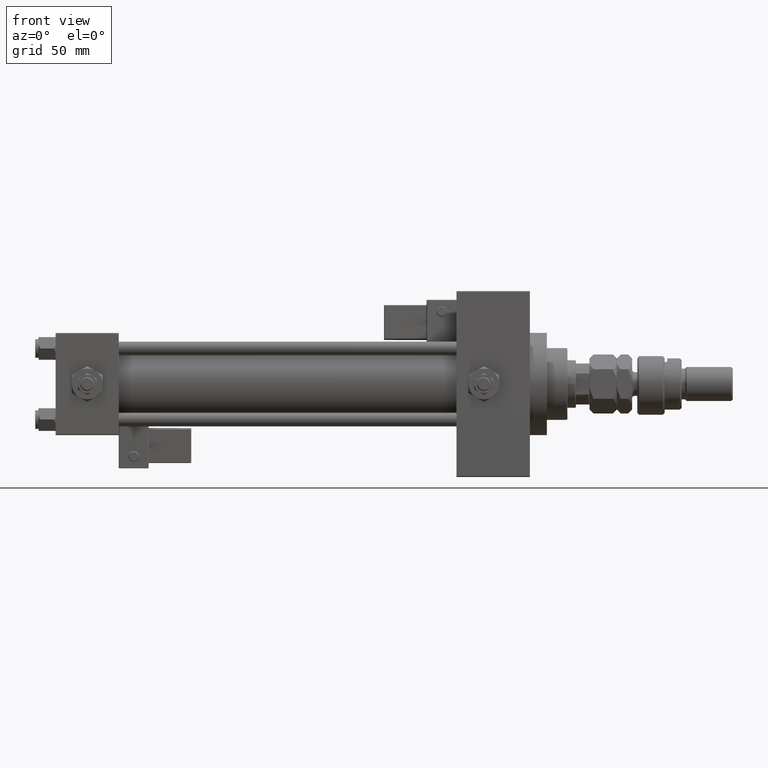
[diagram: clean part render]
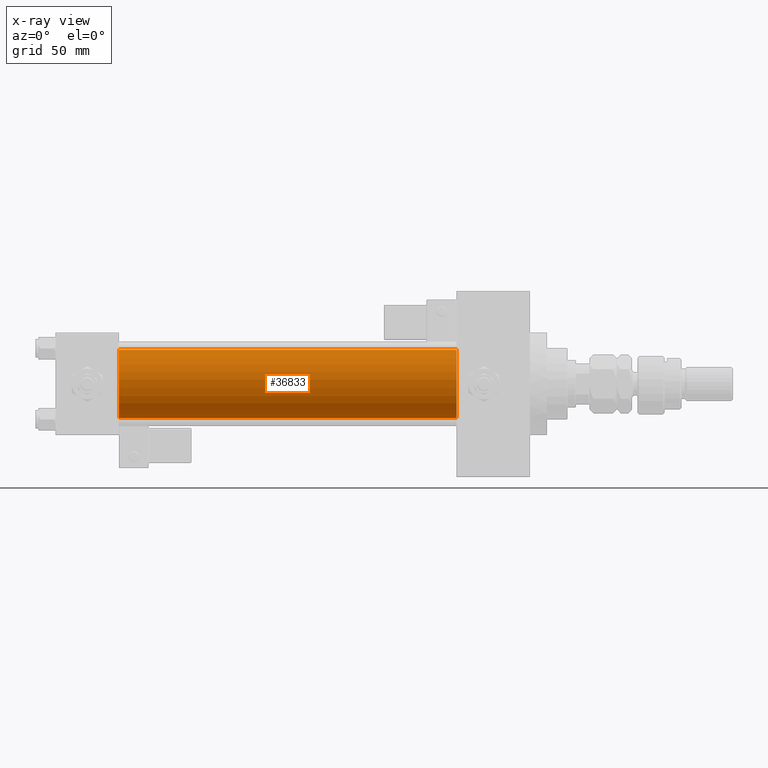
[diagram: x-ray — body ghosted, one internal face saturated and labeled with its STEP entity id]
A machine part, front view, then the same camera in x-ray: the body is ghosted and one INTERNAL B-rep face — a face not visible from any outside direction — is saturated and labeled: STEP entity #36833.
In plain terms, the highlighted cylindrical surface (edge-blend (fillet) strip) has radius 20 mm, axis along (-1, -0, -0).
Its self-contained STEP definition (entity closure, byte-faithful):
#2352 = DIRECTION ( 'NONE',  ( 0.000000000000000000, 0.000000000000000000, 1.000000000000000000 ) ) ;
#3156 = CYLINDRICAL_SURFACE ( 'NONE', #15878, 20.00000000000000000 ) ;
#5222 = EDGE_CURVE ( 'NONE', #45119, #42974, #51783, .T. ) ;
#6105 = DIRECTION ( 'NONE',  ( 0.000000000000000000, 0.000000000000000000, -1.000000000000000000 ) ) ;
#6398 = CIRCLE ( 'NONE', #36236, 20.00000000000000000 ) ;
#7893 = DIRECTION ( 'NONE',  ( -1.000000000000000000, -0.000000000000000000, -0.000000000000000000 ) ) ;
#9207 = DIRECTION ( 'NONE',  ( 1.000000000000000000, 0.000000000000000000, 0.000000000000000000 ) ) ;
#14133 = DIRECTION ( 'NONE',  ( -1.000000000000000000, -0.000000000000000000, -0.000000000000000000 ) ) ;
#14365 = VERTEX_POINT ( 'NONE', #32013 ) ;
#15878 = AXIS2_PLACEMENT_3D ( 'NONE', #35860, #53431, #2352 ) ;
#16031 = ORIENTED_EDGE ( 'NONE', *, *, #39070, .T. ) ;
#18288 = ORIENTED_EDGE ( 'NONE', *, *, #37634, .T. ) ;
#19972 = LINE ( 'NONE', #36737, #42248 ) ;
#24925 = CARTESIAN_POINT ( 'NONE',  ( 37.00000000000000000, -2.602085213965210642E-15, 20.00000000000000000 ) ) ;
#26551 = AXIS2_PLACEMENT_3D ( 'NONE', #39868, #53319, #48663 ) ;
#27888 = FACE_OUTER_BOUND ( 'NONE', #45634, .T. ) ;
#30830 = ORIENTED_EDGE ( 'NONE', *, *, #40683, .F. ) ;
#30890 = CIRCLE ( 'NONE', #26551, 20.00000000000000000 ) ;
#32013 = CARTESIAN_POINT ( 'NONE',  ( 37.00000000000000000, -1.527916156705042519E-16, -20.00000000000000000 ) ) ;
#35487 = CARTESIAN_POINT ( 'NONE',  ( 37.00000000000000000, -2.602085213965210642E-15, 0.000000000000000000 ) ) ;
#35860 = CARTESIAN_POINT ( 'NONE',  ( 235.0000000000000284, -2.602085213965210642E-15, 0.000000000000000000 ) ) ;
#36100 = CARTESIAN_POINT ( 'NONE',  ( 235.0000000000000284, -1.527916156705042519E-16, -20.00000000000000000 ) ) ;
#36236 = AXIS2_PLACEMENT_3D ( 'NONE', #35487, #9207, #6105 ) ;
#36737 = CARTESIAN_POINT ( 'NONE',  ( 235.0000000000000284, -1.527916156705042519E-16, -20.00000000000000000 ) ) ;
#36833 = ADVANCED_FACE ( 'NONE', ( #27888 ), #3156, .F. ) ;
#37634 = EDGE_CURVE ( 'NONE', #48449, #14365, #19972, .T. ) ;
#39070 = EDGE_CURVE ( 'NONE', #45119, #48449, #30890, .T. ) ;
#39416 = CARTESIAN_POINT ( 'NONE',  ( 235.0000000000000284, -2.602085213965210642E-15, 20.00000000000000000 ) ) ;
#39695 = CARTESIAN_POINT ( 'NONE',  ( 235.0000000000000284, -2.602085213965210642E-15, 20.00000000000000000 ) ) ;
#39866 = ORIENTED_EDGE ( 'NONE', *, *, #5222, .F. ) ;
#39868 = CARTESIAN_POINT ( 'NONE',  ( 235.0000000000000284, -2.602085213965210642E-15, 0.000000000000000000 ) ) ;
#40683 = EDGE_CURVE ( 'NONE', #42974, #14365, #6398, .T. ) ;
#42248 = VECTOR ( 'NONE', #7893, 1000.000000000000000 ) ;
#42974 = VERTEX_POINT ( 'NONE', #24925 ) ;
#45119 = VERTEX_POINT ( 'NONE', #39695 ) ;
#45634 = EDGE_LOOP ( 'NONE', ( #16031, #18288, #30830, #39866 ) ) ;
#46827 = VECTOR ( 'NONE', #14133, 1000.000000000000000 ) ;
#48449 = VERTEX_POINT ( 'NONE', #36100 ) ;
#48663 = DIRECTION ( 'NONE',  ( 0.000000000000000000, 0.000000000000000000, -1.000000000000000000 ) ) ;
#51783 = LINE ( 'NONE', #39416, #46827 ) ;
#53319 = DIRECTION ( 'NONE',  ( 1.000000000000000000, 0.000000000000000000, 0.000000000000000000 ) ) ;
#53431 = DIRECTION ( 'NONE',  ( -1.000000000000000000, -0.000000000000000000, -0.000000000000000000 ) ) ;